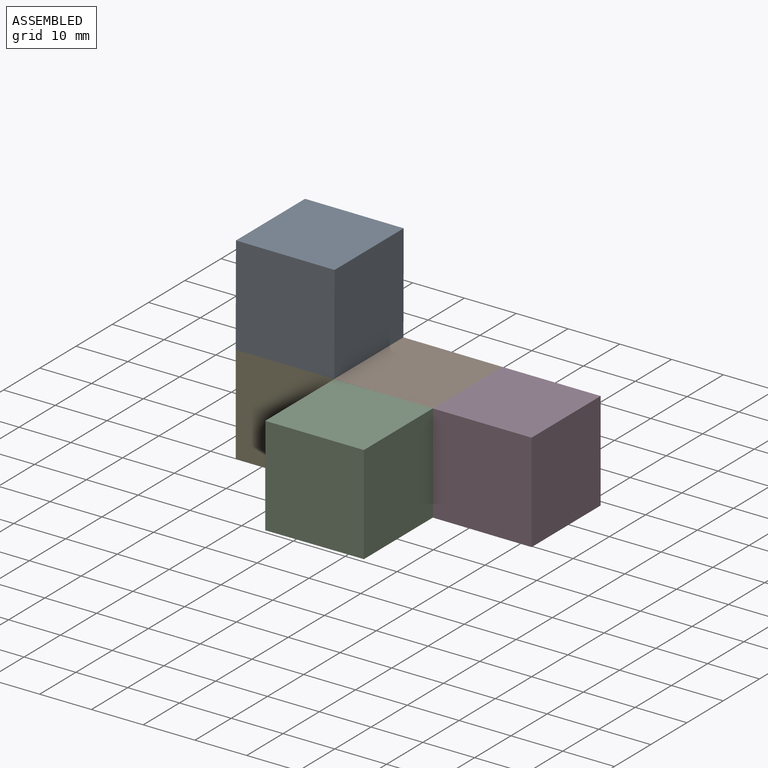
[diagram: assembled view]
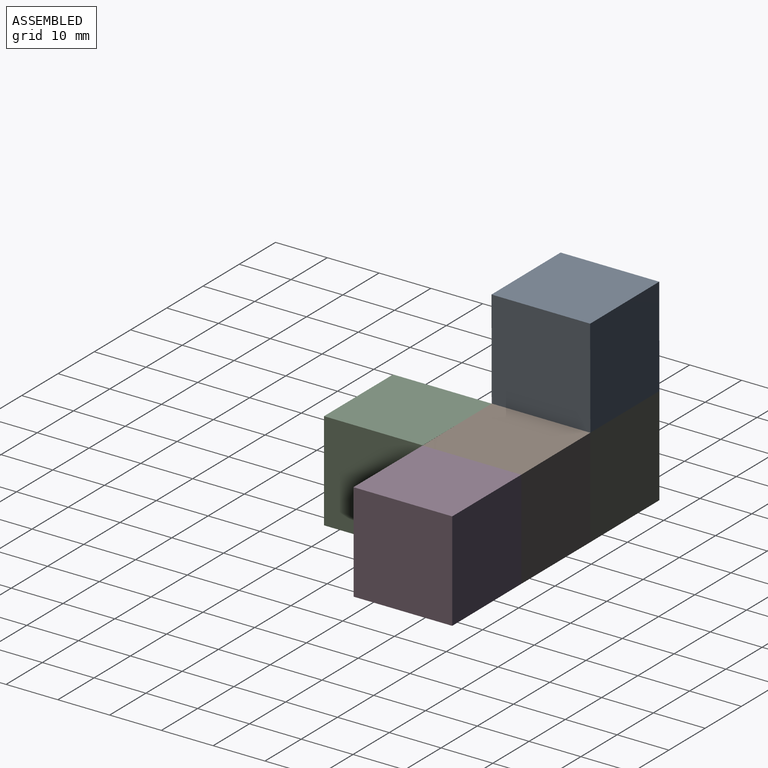
[diagram: assembled view, second angle]
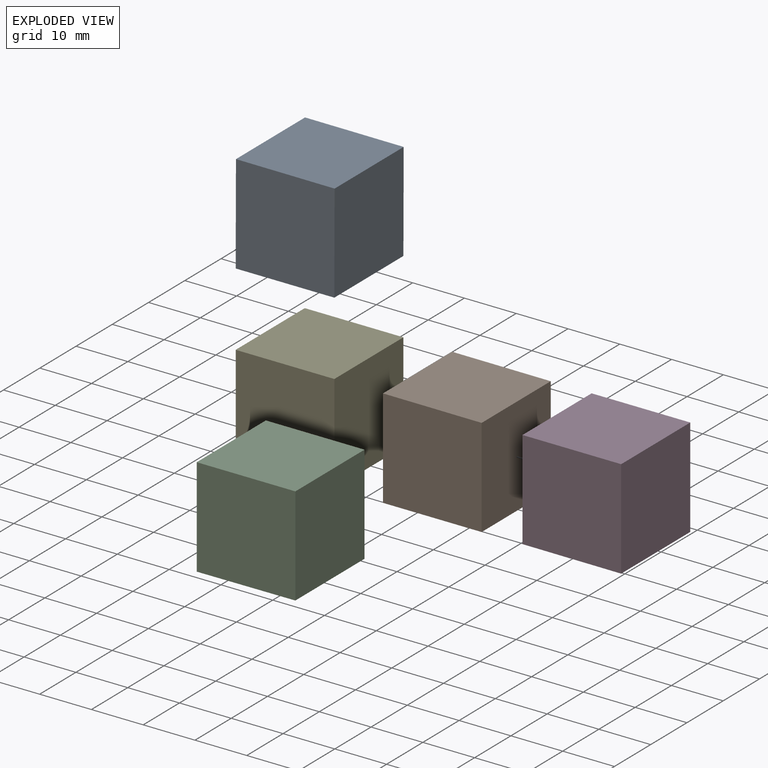
[diagram: exploded view]
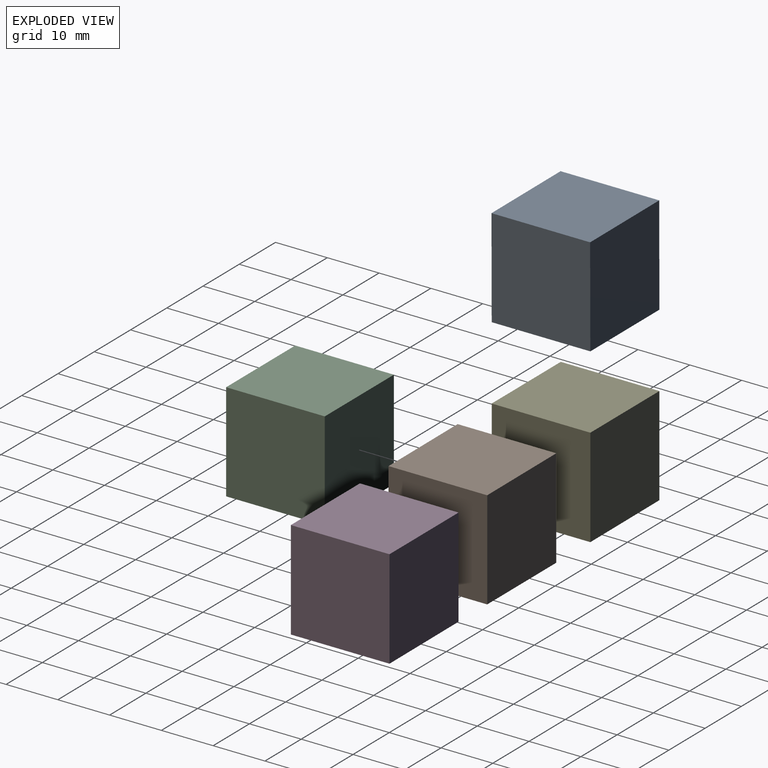
[diagram: exploded view, second angle]
ASSEMBLY  parts=5 mates=4
PART A: 6 faces, bbox 19.1x19.1x19.1 mm
  f0: plane 19.05x19.05mm, normal (0,0,1), area 362.9mm2, adj f1,f3,f4,f5
  f1: plane 19.1x19.05mm, normal (-1,0,0), area 363.9mm2, adj f0,f2,f4,f5
  f2: plane 19.05x19.05mm, normal (0,0,-1), area 362.9mm2, adj f1,f3,f4,f5
  f3: plane 19.05x19.05mm, normal (1,0,0), area 362.9mm2, adj f0,f2,f4,f5
  f4: plane 19.1x19.05mm, normal (0,-1,0), area 363.4mm2, adj f0,f1,f2,f3
  f5: plane 19.1x19.05mm, normal (0,1,0), area 363.4mm2, adj f0,f1,f2,f3
PART B: same geometry as A
PART C: same geometry as A
PART D: same geometry as A
PART E: same geometry as A
PLACE A rot(axis=(1,0,0),180deg) t=(-24.31,-12.35,19.35)mm
PLACE B t=(-5.29,6.7,-0.18)mm fixed
PLACE C rot(axis=(1,0,0),180deg) t=(-5.29,-31.4,0.25)mm
PLACE D rot(axis=(0,1,0),180deg) t=(14.47,6.7,0.22)mm
PLACE E rot(axis=(0,1,0),180deg) t=(-23.63,6.7,0.27)mm
MATE fastened B.f3 <-> D.f3  axis (1,0,0) through (4.59,-2.82,0.02)mm
MATE fastened E.f2 <-> A.f0  axis (0,0,1) through (-23.99,-2.82,9.6)mm
MATE fastened B.f1 <-> E.f1  axis (-1,0,0) through (-14.46,-2.82,0.04)mm
MATE fastened B.f4 <-> C.f4  axis (0,-1,0) through (-4.94,-12.35,0.03)mm
